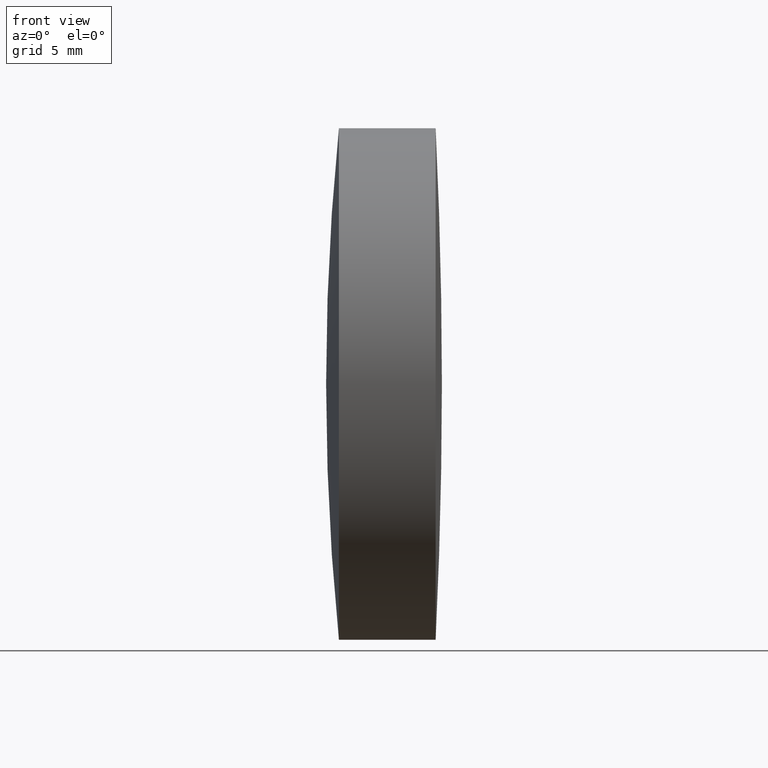
[diagram: clean part render]
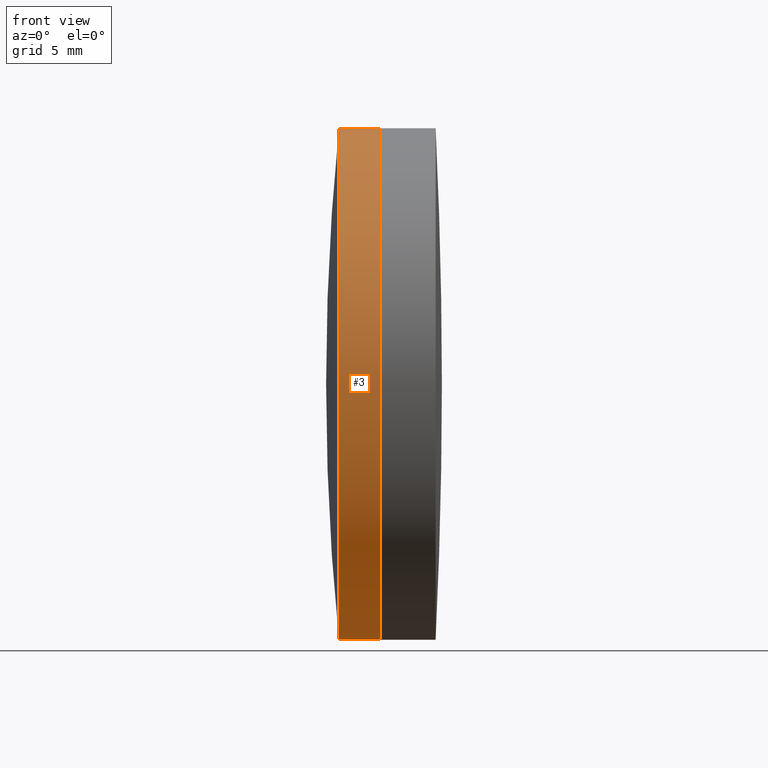
[diagram: same view with one face highlighted and labeled with its STEP entity id]
A machine part, front view. The second image highlights one B-rep face of the part: STEP entity #3.
In plain terms, the highlighted cylindrical surface (partial cylindrical patch) has radius 12.5 mm, axis along (-1, -0, -0).
Its self-contained STEP definition (entity closure, byte-faithful):
#3 = ADVANCED_FACE ( 'NONE', ( #124 ), #106, .T. ) ;
#7 = DIRECTION ( 'NONE',  ( -1.000000000000000000, -0.0000000000000000000, -0.0000000000000000000 ) ) ;
#15 = DIRECTION ( 'NONE',  ( -1.000000000000000000, -0.0000000000000000000, -0.0000000000000000000 ) ) ;
#18 = AXIS2_PLACEMENT_3D ( 'NONE', #205, #228, #119 ) ;
#22 = CARTESIAN_POINT ( 'NONE',  ( 91.87023339387808100, 0.0000000000000000000, 0.0000000000000000000 ) ) ;
#27 = CARTESIAN_POINT ( 'NONE',  ( 93.91225861228011200, 0.0000000000000000000, 12.50000000000000000 ) ) ;
#35 = EDGE_CURVE ( 'NONE', #59, #88, #249, .T. ) ;
#41 = CIRCLE ( 'NONE', #149, 12.50000000000000000 ) ;
#43 = CIRCLE ( 'NONE', #194, 12.50000000000000200 ) ;
#45 = VERTEX_POINT ( 'NONE', #56 ) ;
#56 = CARTESIAN_POINT ( 'NONE',  ( 91.87023339387808100, -1.530808498934183400E-015, 12.49999999999993400 ) ) ;
#59 = VERTEX_POINT ( 'NONE', #115 ) ;
#88 = VERTEX_POINT ( 'NONE', #223 ) ;
#89 = EDGE_LOOP ( 'NONE', ( #211, #274, #193, #268 ) ) ;
#96 = LINE ( 'NONE', #241, #156 ) ;
#106 = CYLINDRICAL_SURFACE ( 'NONE', #18, 12.50000000000000000 ) ;
#115 = CARTESIAN_POINT ( 'NONE',  ( 93.91225861228011200, 1.530808498934191500E-015, -12.50000000000000000 ) ) ;
#119 = DIRECTION ( 'NONE',  ( 0.0000000000000000000, 0.0000000000000000000, 1.000000000000000000 ) ) ;
#124 = FACE_OUTER_BOUND ( 'NONE', #89, .T. ) ;
#141 = CARTESIAN_POINT ( 'NONE',  ( -9.702612178336682500, 1.530808498934191500E-015, -12.50000000000000000 ) ) ;
#149 = AXIS2_PLACEMENT_3D ( 'NONE', #186, #7, #226 ) ;
#156 = VECTOR ( 'NONE', #282, 1000.000000000000000 ) ;
#166 = EDGE_CURVE ( 'NONE', #297, #45, #96, .T. ) ;
#186 = CARTESIAN_POINT ( 'NONE',  ( 93.91225861228011200, 0.0000000000000000000, 0.0000000000000000000 ) ) ;
#193 = ORIENTED_EDGE ( 'NONE', *, *, #166, .T. ) ;
#194 = AXIS2_PLACEMENT_3D ( 'NONE', #22, #15, #264 ) ;
#205 = CARTESIAN_POINT ( 'NONE',  ( -9.702612178336682500, 0.0000000000000000000, 0.0000000000000000000 ) ) ;
#211 = ORIENTED_EDGE ( 'NONE', *, *, #35, .F. ) ;
#214 = EDGE_CURVE ( 'NONE', #88, #45, #43, .T. ) ;
#220 = VECTOR ( 'NONE', #309, 1000.000000000000000 ) ;
#223 = CARTESIAN_POINT ( 'NONE',  ( 91.87023339387808100, 0.0000000000000000000, -12.49999999999993400 ) ) ;
#226 = DIRECTION ( 'NONE',  ( 0.0000000000000000000, 0.0000000000000000000, 1.000000000000000000 ) ) ;
#228 = DIRECTION ( 'NONE',  ( -1.000000000000000000, -0.0000000000000000000, -0.0000000000000000000 ) ) ;
#241 = CARTESIAN_POINT ( 'NONE',  ( -9.702612178336682500, 0.0000000000000000000, 12.50000000000000000 ) ) ;
#249 = LINE ( 'NONE', #141, #220 ) ;
#264 = DIRECTION ( 'NONE',  ( 0.0000000000000000000, 0.0000000000000000000, 1.000000000000000000 ) ) ;
#268 = ORIENTED_EDGE ( 'NONE', *, *, #214, .F. ) ;
#274 = ORIENTED_EDGE ( 'NONE', *, *, #325, .T. ) ;
#282 = DIRECTION ( 'NONE',  ( -1.000000000000000000, -0.0000000000000000000, -0.0000000000000000000 ) ) ;
#297 = VERTEX_POINT ( 'NONE', #27 ) ;
#309 = DIRECTION ( 'NONE',  ( -1.000000000000000000, -0.0000000000000000000, -0.0000000000000000000 ) ) ;
#325 = EDGE_CURVE ( 'NONE', #59, #297, #41, .T. ) ;